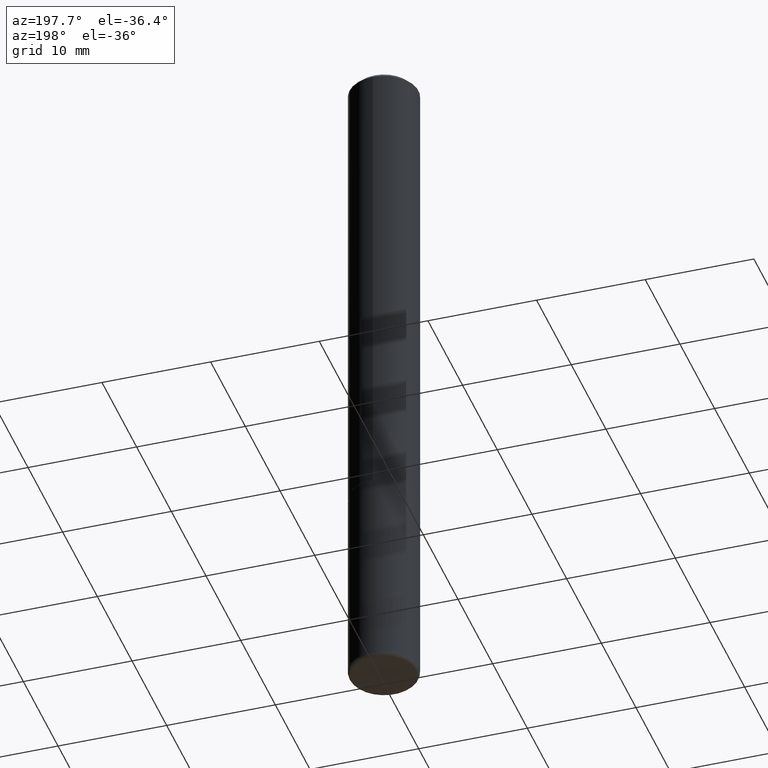
[diagram: clean part render]
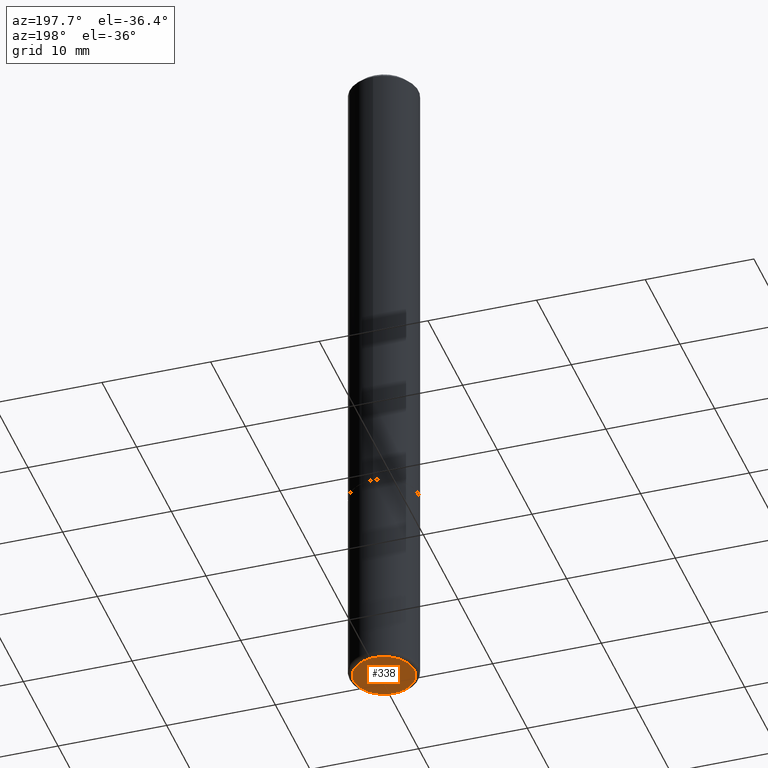
[diagram: same view with one face highlighted and labeled with its STEP entity id]
A machine part, auxiliary view. The second image highlights one B-rep face of the part: STEP entity #338.
In plain terms, the highlighted planar face has unit normal (0, -0, -1).
Its self-contained STEP definition (entity closure, byte-faithful):
#43 = CARTESIAN_POINT ( 'NONE',  ( -0.1100000000000000006, -7.867629522548422746E-15, -2.500000000000000444 ) ) ;
#62 = CARTESIAN_POINT ( 'NONE',  ( 6.113672015462842613E-29, -8.728703347107866520E-15, -2.500000000000000444 ) ) ;
#72 = ORIENTED_EDGE ( 'NONE', *, *, #253, .F. ) ;
#94 = AXIS2_PLACEMENT_3D ( 'NONE', #319, #346, #254 ) ;
#96 = PLANE ( 'NONE',  #121 ) ;
#121 = AXIS2_PLACEMENT_3D ( 'NONE', #350, #283, #225 ) ;
#154 = FACE_OUTER_BOUND ( 'NONE', #402, .T. ) ;
#162 = CARTESIAN_POINT ( 'NONE',  ( 0.1100000000000000006, -9.496829241653356490E-15, -2.500000000000000444 ) ) ;
#200 = DIRECTION ( 'NONE',  ( 1.000000000000000000, -6.982962677686270655E-15, 0.000000000000000000 ) ) ;
#221 = CIRCLE ( 'NONE', #382, 0.1100000000000000006 ) ;
#225 = DIRECTION ( 'NONE',  ( -1.000000000000000000, 6.982962677686265922E-15, -4.876176775795935793E-29 ) ) ;
#237 = DIRECTION ( 'NONE',  ( -2.445468806185136597E-29, 3.491481338843145583E-15, 1.000000000000000000 ) ) ;
#240 = VERTEX_POINT ( 'NONE', #43 ) ;
#253 = EDGE_CURVE ( 'NONE', #400, #240, #221, .T. ) ;
#254 = DIRECTION ( 'NONE',  ( 1.000000000000000000, -6.982962677686270655E-15, 0.000000000000000000 ) ) ;
#283 = DIRECTION ( 'NONE',  ( 2.438088387897960049E-29, -3.491481338843145188E-15, -1.000000000000000000 ) ) ;
#318 = EDGE_CURVE ( 'NONE', #240, #400, #388, .T. ) ;
#319 = CARTESIAN_POINT ( 'NONE',  ( 6.113672015462842613E-29, -8.728703347107866520E-15, -2.500000000000000444 ) ) ;
#336 = ORIENTED_EDGE ( 'NONE', *, *, #318, .F. ) ;
#338 = ADVANCED_FACE ( 'NONE', ( #154 ), #96, .T. ) ;
#346 = DIRECTION ( 'NONE',  ( -2.445468806185136597E-29, 3.491481338843145583E-15, 1.000000000000000000 ) ) ;
#350 = CARTESIAN_POINT ( 'NONE',  ( -2.557415521296099768E-29, -2.114619422739997973E-14, -2.500000000000000000 ) ) ;
#382 = AXIS2_PLACEMENT_3D ( 'NONE', #62, #237, #200 ) ;
#388 = CIRCLE ( 'NONE', #94, 0.1100000000000000006 ) ;
#400 = VERTEX_POINT ( 'NONE', #162 ) ;
#402 = EDGE_LOOP ( 'NONE', ( #72, #336 ) ) ;